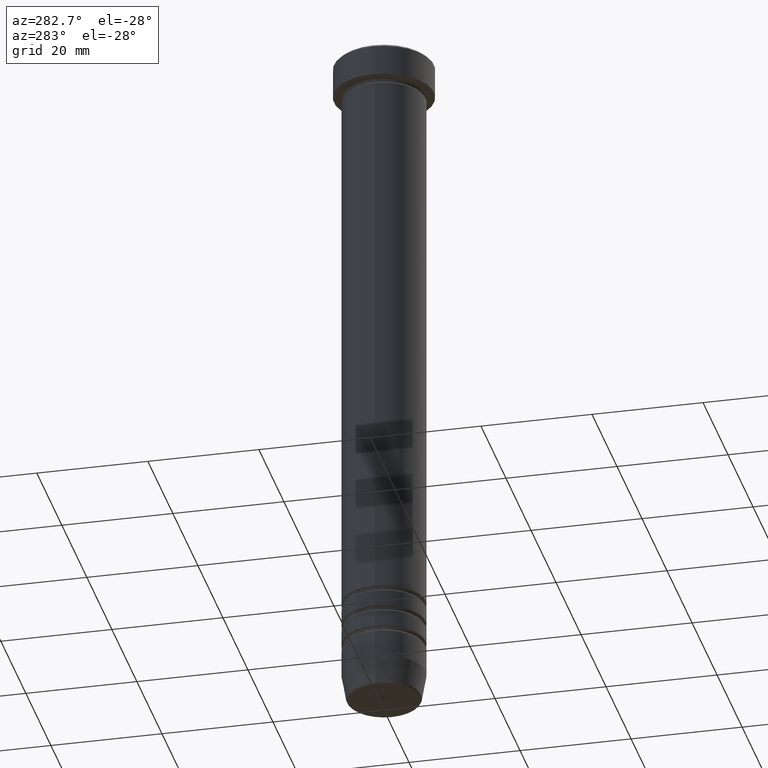
[diagram: clean part render]
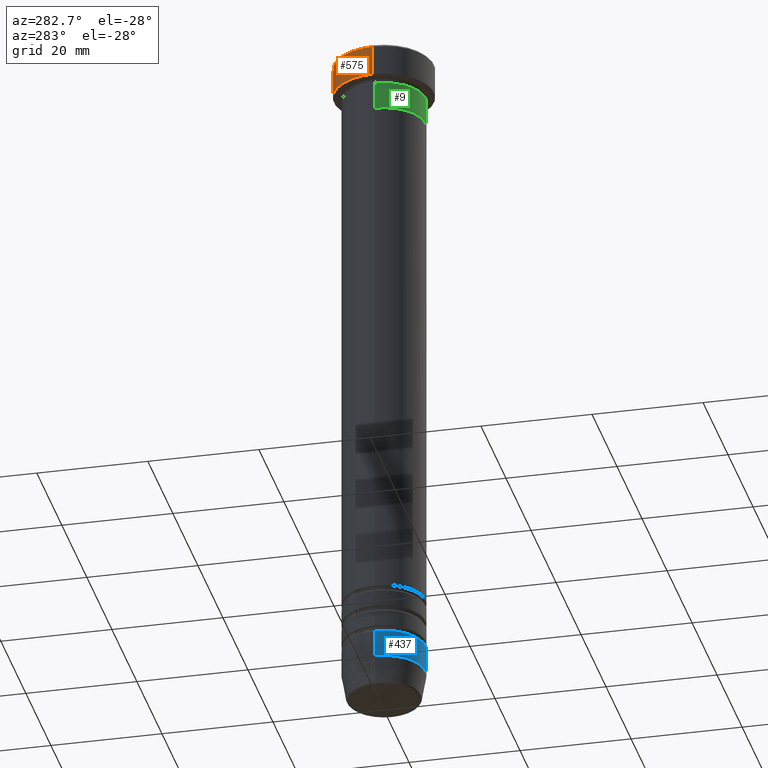
[diagram: same view with three faces highlighted in distinct colors, each labeled with its STEP entity id]
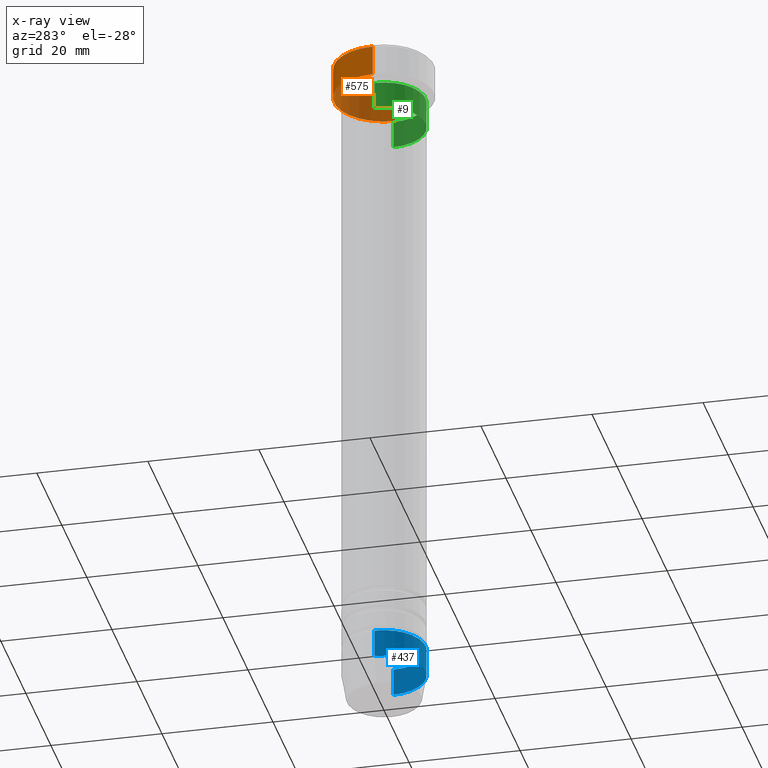
[diagram: x-ray of the same camera — body ghosted, the three highlighted faces saturated]
A machine part, auxiliary view with three faces highlighted in distinct colors.
The next image is the same camera in x-ray (body ghosted, the three faces saturated) — at least one of them is partly hidden behind the body in this view.
Their STEP definitions:

[orange] entity #575 — the highlighted cylindrical surface (partial cylindrical patch) has radius 9 mm, axis along (-0, -0, 1).
#20 = EDGE_CURVE ( 'NONE', #459, #224, #81, .T. ) ;
#41 = CARTESIAN_POINT ( 'NONE',  ( 0.000000000000000000, 0.000000000000000000, -6.000000000000000000 ) ) ;
#44 = DIRECTION ( 'NONE',  ( -0.000000000000000000, -0.000000000000000000, 1.000000000000000000 ) ) ;
#52 = AXIS2_PLACEMENT_3D ( 'NONE', #436, #443, #872 ) ;
#73 = VECTOR ( 'NONE', #44, 1000.000000000000000 ) ;
#81 = CIRCLE ( 'NONE', #1034, 9.000000000000000000 ) ;
#83 = ORIENTED_EDGE ( 'NONE', *, *, #686, .T. ) ;
#122 = ORIENTED_EDGE ( 'NONE', *, *, #553, .T. ) ;
#213 = EDGE_CURVE ( 'NONE', #459, #608, #576, .T. ) ;
#224 = VERTEX_POINT ( 'NONE', #842 ) ;
#358 = CARTESIAN_POINT ( 'NONE',  ( -9.000000000000000000, 1.102182119232617714E-15, -0.5000000000000023315 ) ) ;
#431 = DIRECTION ( 'NONE',  ( -0.000000000000000000, -0.000000000000000000, 1.000000000000000000 ) ) ;
#436 = CARTESIAN_POINT ( 'NONE',  ( 0.000000000000000000, 0.000000000000000000, -0.5000000000000023315 ) ) ;
#443 = DIRECTION ( 'NONE',  ( 0.000000000000000000, 0.000000000000000000, -1.000000000000000000 ) ) ;
#451 = CIRCLE ( 'NONE', #52, 9.000000000000000000 ) ;
#459 = VERTEX_POINT ( 'NONE', #761 ) ;
#469 = DIRECTION ( 'NONE',  ( 1.000000000000000000, 0.000000000000000000, 0.000000000000000000 ) ) ;
#492 = CARTESIAN_POINT ( 'NONE',  ( 9.000000000000000000, 0.000000000000000000, 0.000000000000000000 ) ) ;
#504 = CARTESIAN_POINT ( 'NONE',  ( 0.000000000000000000, 0.000000000000000000, 0.000000000000000000 ) ) ;
#553 = EDGE_CURVE ( 'NONE', #1031, #608, #451, .T. ) ;
#560 = EDGE_LOOP ( 'NONE', ( #643, #83, #122, #696 ) ) ;
#575 = ADVANCED_FACE ( 'NONE', ( #579 ), #770, .T. ) ;
#576 = LINE ( 'NONE', #492, #73 ) ;
#579 = FACE_OUTER_BOUND ( 'NONE', #560, .T. ) ;
#608 = VERTEX_POINT ( 'NONE', #1018 ) ;
#623 = DIRECTION ( 'NONE',  ( -0.000000000000000000, -0.000000000000000000, 1.000000000000000000 ) ) ;
#643 = ORIENTED_EDGE ( 'NONE', *, *, #20, .T. ) ;
#652 = DIRECTION ( 'NONE',  ( -0.000000000000000000, -0.000000000000000000, 1.000000000000000000 ) ) ;
#686 = EDGE_CURVE ( 'NONE', #224, #1031, #1086, .T. ) ;
#696 = ORIENTED_EDGE ( 'NONE', *, *, #213, .F. ) ;
#761 = CARTESIAN_POINT ( 'NONE',  ( 9.000000000000000000, 0.000000000000000000, -6.000000000000000000 ) ) ;
#770 = CYLINDRICAL_SURFACE ( 'NONE', #1083, 9.000000000000000000 ) ;
#842 = CARTESIAN_POINT ( 'NONE',  ( -9.000000000000000000, 1.102182119232617714E-15, -6.000000000000000000 ) ) ;
#872 = DIRECTION ( 'NONE',  ( 1.000000000000000000, 0.000000000000000000, 0.000000000000000000 ) ) ;
#944 = DIRECTION ( 'NONE',  ( 1.000000000000000000, 0.000000000000000000, 0.000000000000000000 ) ) ;
#1018 = CARTESIAN_POINT ( 'NONE',  ( 9.000000000000000000, 0.000000000000000000, -0.5000000000000023315 ) ) ;
#1031 = VERTEX_POINT ( 'NONE', #358 ) ;
#1034 = AXIS2_PLACEMENT_3D ( 'NONE', #41, #623, #469 ) ;
#1066 = VECTOR ( 'NONE', #652, 1000.000000000000000 ) ;
#1083 = AXIS2_PLACEMENT_3D ( 'NONE', #504, #431, #944 ) ;
#1086 = LINE ( 'NONE', #1091, #1066 ) ;
#1091 = CARTESIAN_POINT ( 'NONE',  ( -9.000000000000000000, 1.102182119232617714E-15, 0.000000000000000000 ) ) ;

[blue] entity #437 — the highlighted cylindrical surface (partial cylindrical patch) has radius 7.5 mm, axis along (-0, -0, 1).
#33 = AXIS2_PLACEMENT_3D ( 'NONE', #1003, #919, #775 ) ;
#62 = CARTESIAN_POINT ( 'NONE',  ( 7.499999999999998224, 0.000000000000000000, 0.000000000000000000 ) ) ;
#112 = CIRCLE ( 'NONE', #226, 7.499999999999998224 ) ;
#120 = ORIENTED_EDGE ( 'NONE', *, *, #967, .T. ) ;
#137 = CARTESIAN_POINT ( 'NONE',  ( -7.499999999999998224, 9.184850993605145972E-16, -116.0000000000000000 ) ) ;
#143 = ORIENTED_EDGE ( 'NONE', *, *, #812, .F. ) ;
#156 = LINE ( 'NONE', #62, #1054 ) ;
#175 = CARTESIAN_POINT ( 'NONE',  ( 7.499999999999998224, 0.000000000000000000, -116.0000000000000000 ) ) ;
#226 = AXIS2_PLACEMENT_3D ( 'NONE', #716, #367, #806 ) ;
#295 = ORIENTED_EDGE ( 'NONE', *, *, #1146, .T. ) ;
#312 = VERTEX_POINT ( 'NONE', #137 ) ;
#351 = CARTESIAN_POINT ( 'NONE',  ( 7.499999999999998224, 0.000000000000000000, -121.0000000000000000 ) ) ;
#367 = DIRECTION ( 'NONE',  ( -0.000000000000000000, -0.000000000000000000, 1.000000000000000000 ) ) ;
#412 = VERTEX_POINT ( 'NONE', #351 ) ;
#415 = CARTESIAN_POINT ( 'NONE',  ( 0.000000000000000000, 0.000000000000000000, 0.000000000000000000 ) ) ;
#416 = DIRECTION ( 'NONE',  ( -0.000000000000000000, -0.000000000000000000, 1.000000000000000000 ) ) ;
#419 = EDGE_LOOP ( 'NONE', ( #143, #120, #295, #909 ) ) ;
#437 = ADVANCED_FACE ( 'NONE', ( #498 ), #826, .T. ) ;
#465 = AXIS2_PLACEMENT_3D ( 'NONE', #415, #845, #1120 ) ;
#498 = FACE_OUTER_BOUND ( 'NONE', #419, .T. ) ;
#508 = EDGE_CURVE ( 'NONE', #312, #595, #697, .T. ) ;
#595 = VERTEX_POINT ( 'NONE', #175 ) ;
#688 = DIRECTION ( 'NONE',  ( -0.000000000000000000, -0.000000000000000000, 1.000000000000000000 ) ) ;
#697 = CIRCLE ( 'NONE', #33, 7.499999999999998224 ) ;
#716 = CARTESIAN_POINT ( 'NONE',  ( 0.000000000000000000, 0.000000000000000000, -121.0000000000000000 ) ) ;
#775 = DIRECTION ( 'NONE',  ( 1.000000000000000000, 0.000000000000000000, 0.000000000000000000 ) ) ;
#806 = DIRECTION ( 'NONE',  ( 1.000000000000000000, 0.000000000000000000, 0.000000000000000000 ) ) ;
#812 = EDGE_CURVE ( 'NONE', #1078, #312, #949, .T. ) ;
#826 = CYLINDRICAL_SURFACE ( 'NONE', #465, 7.499999999999998224 ) ;
#845 = DIRECTION ( 'NONE',  ( -0.000000000000000000, -0.000000000000000000, 1.000000000000000000 ) ) ;
#909 = ORIENTED_EDGE ( 'NONE', *, *, #508, .F. ) ;
#919 = DIRECTION ( 'NONE',  ( -0.000000000000000000, -0.000000000000000000, 1.000000000000000000 ) ) ;
#942 = CARTESIAN_POINT ( 'NONE',  ( -7.499999999999998224, 9.184850993605145972E-16, 0.000000000000000000 ) ) ;
#949 = LINE ( 'NONE', #942, #953 ) ;
#953 = VECTOR ( 'NONE', #688, 1000.000000000000000 ) ;
#967 = EDGE_CURVE ( 'NONE', #1078, #412, #112, .T. ) ;
#1003 = CARTESIAN_POINT ( 'NONE',  ( 0.000000000000000000, 0.000000000000000000, -116.0000000000000000 ) ) ;
#1046 = CARTESIAN_POINT ( 'NONE',  ( -7.499999999999998224, 9.184850993605145972E-16, -121.0000000000000000 ) ) ;
#1054 = VECTOR ( 'NONE', #416, 1000.000000000000000 ) ;
#1078 = VERTEX_POINT ( 'NONE', #1046 ) ;
#1120 = DIRECTION ( 'NONE',  ( 1.000000000000000000, 0.000000000000000000, 0.000000000000000000 ) ) ;
#1146 = EDGE_CURVE ( 'NONE', #412, #595, #156, .T. ) ;

[green] entity #9 — the highlighted cylindrical surface (partial cylindrical patch) has radius 7.5 mm, axis along (-0, -0, 1).
#9 = ADVANCED_FACE ( 'NONE', ( #338 ), #831, .T. ) ;
#69 = DIRECTION ( 'NONE',  ( 1.000000000000000000, 0.000000000000000000, 0.000000000000000000 ) ) ;
#70 = CARTESIAN_POINT ( 'NONE',  ( 7.499999999999999112, 0.000000000000000000, -12.00000000000000000 ) ) ;
#159 = DIRECTION ( 'NONE',  ( 1.000000000000000000, 0.000000000000000000, 0.000000000000000000 ) ) ;
#198 = VECTOR ( 'NONE', #609, 1000.000000000000000 ) ;
#214 = EDGE_CURVE ( 'NONE', #988, #315, #850, .T. ) ;
#258 = VERTEX_POINT ( 'NONE', #1043 ) ;
#272 = LINE ( 'NONE', #1068, #198 ) ;
#299 = ORIENTED_EDGE ( 'NONE', *, *, #597, .T. ) ;
#315 = VERTEX_POINT ( 'NONE', #911 ) ;
#321 = ORIENTED_EDGE ( 'NONE', *, *, #214, .F. ) ;
#338 = FACE_OUTER_BOUND ( 'NONE', #461, .T. ) ;
#400 = AXIS2_PLACEMENT_3D ( 'NONE', #1103, #502, #838 ) ;
#433 = ORIENTED_EDGE ( 'NONE', *, *, #523, .F. ) ;
#461 = EDGE_LOOP ( 'NONE', ( #433, #299, #598, #321 ) ) ;
#502 = DIRECTION ( 'NONE',  ( -0.000000000000000000, -0.000000000000000000, 1.000000000000000000 ) ) ;
#522 = CARTESIAN_POINT ( 'NONE',  ( 0.000000000000000000, 0.000000000000000000, -12.00000000000000000 ) ) ;
#523 = EDGE_CURVE ( 'NONE', #258, #988, #272, .T. ) ;
#596 = DIRECTION ( 'NONE',  ( -0.000000000000000000, -0.000000000000000000, 1.000000000000000000 ) ) ;
#597 = EDGE_CURVE ( 'NONE', #258, #1080, #1030, .T. ) ;
#598 = ORIENTED_EDGE ( 'NONE', *, *, #863, .T. ) ;
#605 = CARTESIAN_POINT ( 'NONE',  ( 7.500000000000000000, 0.000000000000000000, 0.000000000000000000 ) ) ;
#609 = DIRECTION ( 'NONE',  ( -0.000000000000000000, -0.000000000000000000, 1.000000000000000000 ) ) ;
#667 = LINE ( 'NONE', #605, #885 ) ;
#680 = CARTESIAN_POINT ( 'NONE',  ( 0.000000000000000000, 0.000000000000000000, 0.000000000000000000 ) ) ;
#831 = CYLINDRICAL_SURFACE ( 'NONE', #1069, 7.500000000000000000 ) ;
#838 = DIRECTION ( 'NONE',  ( 1.000000000000000000, 0.000000000000000000, 0.000000000000000000 ) ) ;
#850 = CIRCLE ( 'NONE', #400, 7.500000000000000000 ) ;
#863 = EDGE_CURVE ( 'NONE', #1080, #315, #667, .T. ) ;
#864 = DIRECTION ( 'NONE',  ( -0.000000000000000000, -0.000000000000000000, 1.000000000000000000 ) ) ;
#885 = VECTOR ( 'NONE', #596, 1000.000000000000000 ) ;
#911 = CARTESIAN_POINT ( 'NONE',  ( 7.500000000000000000, 0.000000000000000000, -6.999999999999999112 ) ) ;
#941 = DIRECTION ( 'NONE',  ( -0.000000000000000000, -0.000000000000000000, 1.000000000000000000 ) ) ;
#988 = VERTEX_POINT ( 'NONE', #1145 ) ;
#1030 = CIRCLE ( 'NONE', #1053, 7.499999999999999112 ) ;
#1043 = CARTESIAN_POINT ( 'NONE',  ( -7.499999999999999112, 9.184850993605145972E-16, -12.00000000000000000 ) ) ;
#1053 = AXIS2_PLACEMENT_3D ( 'NONE', #522, #864, #69 ) ;
#1068 = CARTESIAN_POINT ( 'NONE',  ( -7.500000000000000000, 9.184850993605147944E-16, 0.000000000000000000 ) ) ;
#1069 = AXIS2_PLACEMENT_3D ( 'NONE', #680, #941, #159 ) ;
#1080 = VERTEX_POINT ( 'NONE', #70 ) ;
#1103 = CARTESIAN_POINT ( 'NONE',  ( 0.000000000000000000, 0.000000000000000000, -6.999999999999999112 ) ) ;
#1145 = CARTESIAN_POINT ( 'NONE',  ( -7.500000000000000000, 9.184850993605147944E-16, -6.999999999999999112 ) ) ;